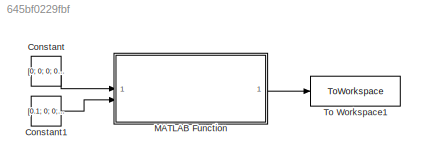
MODEL slx_645bf0229fbf
KIND model
CONFIG AbsTol = auto
CONFIG EnableMultiTasking = off
CONFIG FixedStep = auto
CONFIG MaxStep = auto
CONFIG MinStep = auto
CONFIG RelTol = 1e-3
CONFIG SampleTimeConstraint = Unconstrained
CONFIG SolverName = VariableStepAuto
CONFIG StartTime = 0.0
CONFIG StopTime = 5
BLOCK [Constant] Constant
  SampleTime = 0.01
  Value = [0; 0; 0; 0; 0; 0]
  VectorParams1D = off
BLOCK [Constant] Constant1
  SampleTime = 0.01
  Value = [0.1; 0; 0; 0; 0; 0]
  VectorParams1D = off
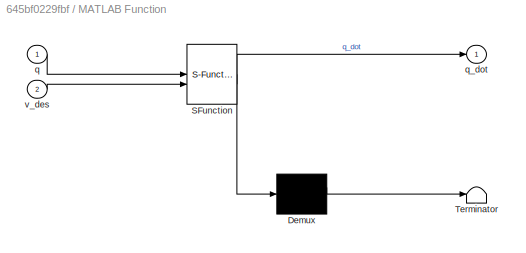
BLOCK [SubSystem] MATLAB Function
  ErrorFcn = Stateflow.Translate.translate
  PermitHierarchicalResolution = ExplicitOnly
  SFBlockType = MATLAB Function
  TreatAsAtomicUnit = on
BLOCK [Demux] MATLAB Function/ Demux 
  Outputs = 1
BLOCK [S-Function] MATLAB Function/ SFunction 
  EnableBusSupport = on
  FunctionName = sf_sfun
  PortCounts = [2 2]
  SFcnIsStateOwnerBlock = off
  SFunctionDeploymentMode = off
  Tag = Stateflow S-Function 2
BLOCK [Terminator] MATLAB Function/ Terminator 
BLOCK [Inport] MATLAB Function/q
BLOCK [Outport] MATLAB Function/q_dot
BLOCK [Inport] MATLAB Function/v_des
  Port = 2
BLOCK [ToWorkspace] To Workspace1
  FixptAsFi = on
  MaxDataPoints = inf
  SampleTime = 0.01
  Save2DSignal = 2-D array (concatenate along first dimension)
  VariableName = Jaco_matrix1
LINE Constant1:1 -> MATLAB Function:2
LINE Constant:1 -> MATLAB Function:1
LINE MATLAB Function:1 -> To Workspace1:1
CHART MATLAB Function states=1 transitions=1
  STATE_LABEL 'eML_blk_kernel()'
  STATE_LABEL "SCRIPT:\nfunction q_dot = computeJacobian(q, v_des)\ncoder.extrinsic('geometricJacobian');\ncoder.extrinsic('loadrobot');\n\n% 預先定義輸出大小，避免 Simulink 無法推斷維度\nq_dot = zeros(6,1); \n\n% 讀取機械手臂模型\nrobot = loadrobot('universalUR5', 'DataFormat', 'column');\n\n% 計算雅可比矩陣\nJ = geometricJacobian(robot, q, 'tool0');\n\n% 確保 J 不是空的\nif ~isempty(J)\n    % 計算雅可比偽逆\n    J_pinv = pinv(J);\n\n    % 計算關節速度 q_dot = J_pinv * v_des\n    ...<+32ch>"
CHART  states=0 transitions=0
